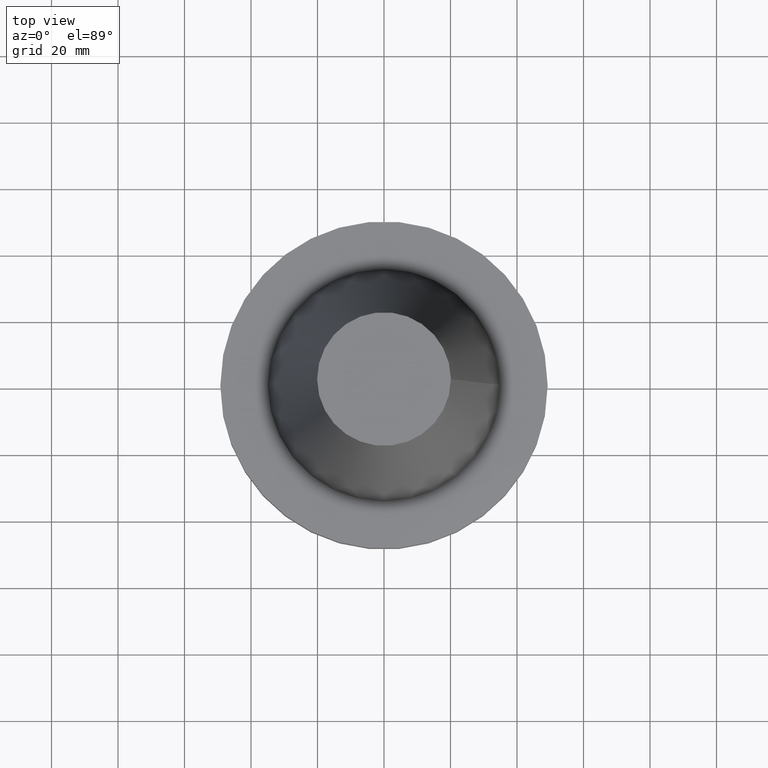
[diagram: clean part render]
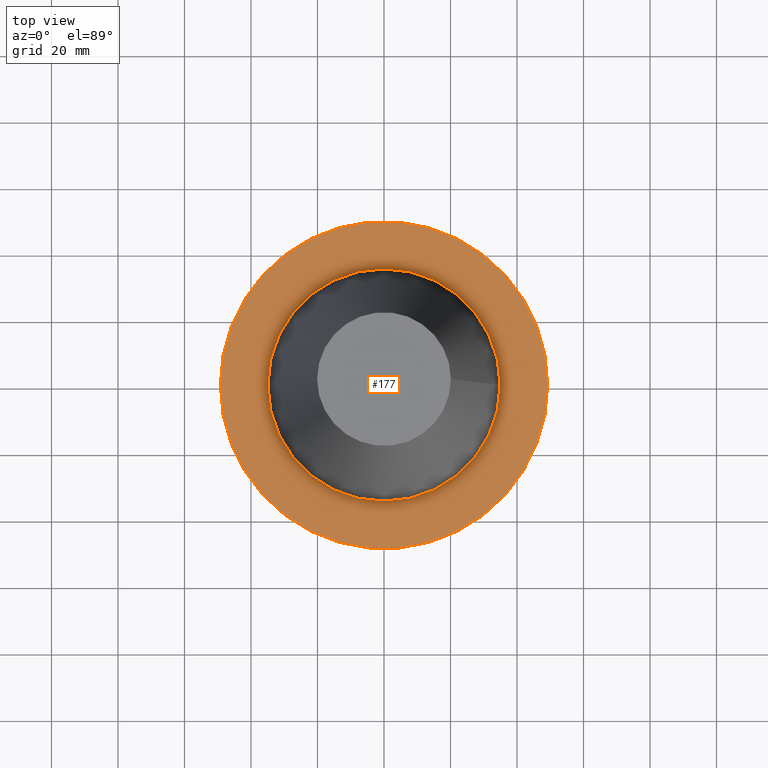
[diagram: same view with one face highlighted and labeled with its STEP entity id]
A machine part, top view. The second image highlights one B-rep face of the part: STEP entity #177.
In plain terms, the highlighted planar face has unit normal (0, 0, -1).
Its self-contained STEP definition (entity closure, byte-faithful):
#11 = ORIENTED_EDGE ( 'NONE', *, *, #306, .T. ) ;
#20 = CIRCLE ( 'NONE', #353, 49.21499999999999631 ) ;
#59 = DIRECTION ( 'NONE',  ( -1.000000000000000000, 0.000000000000000000, -0.000000000000000000 ) ) ;
#125 = EDGE_LOOP ( 'NONE', ( #11 ) ) ;
#127 = CARTESIAN_POINT ( 'NONE',  ( 0.000000000000000000, 0.000000000000000000, -1.499999999999987566 ) ) ;
#142 = VERTEX_POINT ( 'NONE', #231 ) ;
#148 = DIRECTION ( 'NONE',  ( 0.000000000000000000, 0.000000000000000000, -1.000000000000000000 ) ) ;
#153 = FACE_OUTER_BOUND ( 'NONE', #125, .T. ) ;
#165 = AXIS2_PLACEMENT_3D ( 'NONE', #272, #148, #59 ) ;
#177 = ADVANCED_FACE ( 'NONE', ( #363, #153 ), #210, .F. ) ;
#193 = DIRECTION ( 'NONE',  ( -0.000000000000000000, -0.000000000000000000, 1.000000000000000000 ) ) ;
#210 = PLANE ( 'NONE',  #165 ) ;
#214 = DIRECTION ( 'NONE',  ( -0.000000000000000000, -0.000000000000000000, 1.000000000000000000 ) ) ;
#225 = DIRECTION ( 'NONE',  ( 1.000000000000000000, 0.000000000000000000, 0.000000000000000000 ) ) ;
#228 = VERTEX_POINT ( 'NONE', #268 ) ;
#231 = CARTESIAN_POINT ( 'NONE',  ( 34.92499999999999005, 0.000000000000000000, -1.499999999999987566 ) ) ;
#268 = CARTESIAN_POINT ( 'NONE',  ( 49.21499999999999631, 0.000000000000000000, -1.499999999999987566 ) ) ;
#272 = CARTESIAN_POINT ( 'NONE',  ( 0.000000000000000000, 49.21499999999999631, -1.499999999999992895 ) ) ;
#285 = EDGE_CURVE ( 'NONE', #142, #142, #325, .T. ) ;
#291 = ORIENTED_EDGE ( 'NONE', *, *, #285, .F. ) ;
#306 = EDGE_CURVE ( 'NONE', #228, #228, #20, .T. ) ;
#313 = EDGE_LOOP ( 'NONE', ( #291 ) ) ;
#321 = DIRECTION ( 'NONE',  ( 1.000000000000000000, 0.000000000000000000, 0.000000000000000000 ) ) ;
#325 = CIRCLE ( 'NONE', #350, 34.92499999999999005 ) ;
#350 = AXIS2_PLACEMENT_3D ( 'NONE', #391, #193, #321 ) ;
#353 = AXIS2_PLACEMENT_3D ( 'NONE', #127, #214, #225 ) ;
#363 = FACE_BOUND ( 'NONE', #313, .T. ) ;
#391 = CARTESIAN_POINT ( 'NONE',  ( 0.000000000000000000, 0.000000000000000000, -1.499999999999987566 ) ) ;